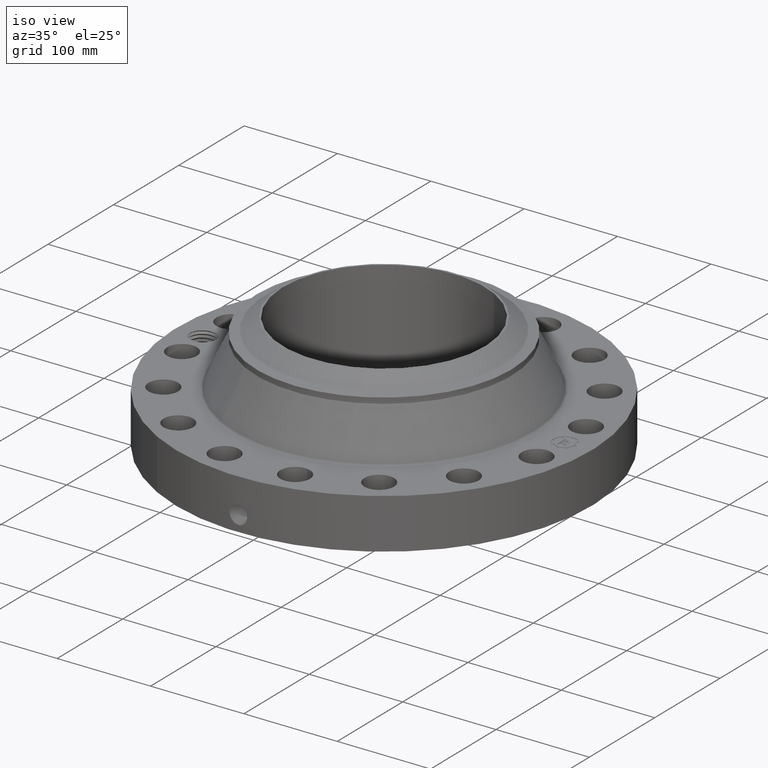
[diagram: clean part render]
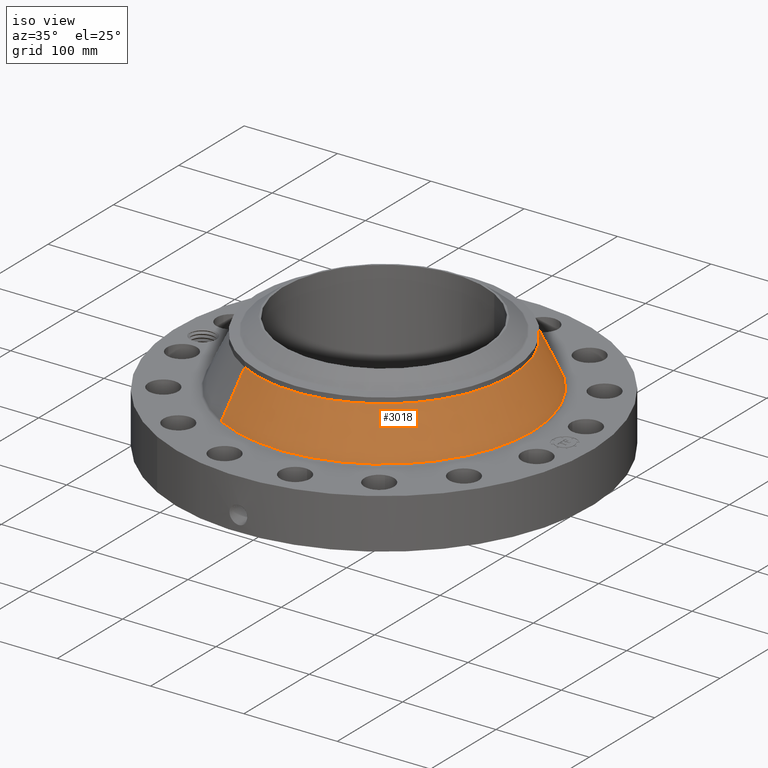
[diagram: same view with one face highlighted and labeled with its STEP entity id]
A machine part, iso view. The second image highlights one B-rep face of the part: STEP entity #3018.
In plain terms, the highlighted conical surface has half-angle 25.689 deg.
Its self-contained STEP definition (entity closure, byte-faithful):
#2331=AXIS2_PLACEMENT_3D('Circle Axis2P3D',#2329,#2330,$) ;
#2991=AXIS2_PLACEMENT_3D('Cone Axis2P3D',#2988,#2989,#2990) ;
#3002=AXIS2_PLACEMENT_3D('Circle Axis2P3D',#3000,#3001,$) ;
#2326=CARTESIAN_POINT('Vertex',(3.00949732195,5.50884789636,2.43798173757)) ;
#2329=CARTESIAN_POINT('Axis2P3D Location',(0.,0.,2.43798173757)) ;
#2333=CARTESIAN_POINT('Vertex',(-3.00949732195,-5.50884789636,2.43798173757)) ;
#2988=CARTESIAN_POINT('Axis2P3D Location',(0.,0.,4.31374450254)) ;
#2993=CARTESIAN_POINT('Line Origine',(2.79320479598,5.11292708327,3.37586312006)) ;
#2997=CARTESIAN_POINT('Vertex',(2.57691227001,4.71700627018,4.31374450254)) ;
#3000=CARTESIAN_POINT('Axis2P3D Location',(0.,0.,4.31374450254)) ;
#3004=CARTESIAN_POINT('Vertex',(-2.57691227001,-4.71700627018,4.31374450254)) ;
#3007=CARTESIAN_POINT('Line Origine',(-2.79320479598,-5.11292708327,3.37586312006)) ;
#2330=DIRECTION('Axis2P3D Direction',(0.,0.,-0.0393700787402)) ;
#2989=DIRECTION('Axis2P3D Direction',(0.,0.,-0.0393700787402)) ;
#2990=DIRECTION('Axis2P3D XDirection',(-0.0188750212049,-0.0345504945626,0.)) ;
#2994=DIRECTION('Vector Direction',(0.00818204838788,0.0149771391125,-0.0354787610859)) ;
#3001=DIRECTION('Axis2P3D Direction',(0.,0.,-0.0393700787402)) ;
#3008=DIRECTION('Vector Direction',(-0.00818204838788,-0.0149771391125,-0.0354787610859)) ;
#2995=VECTOR('Line Direction',#2994,0.0393700787402) ;
#3009=VECTOR('Line Direction',#3008,0.0393700787402) ;
#3013=ORIENTED_EDGE('',*,*,#2335,.F.) ;
#3014=ORIENTED_EDGE('',*,*,#2999,.T.) ;
#3015=ORIENTED_EDGE('',*,*,#3006,.T.) ;
#3016=ORIENTED_EDGE('',*,*,#3011,.F.) ;
#3018=ADVANCED_FACE('PartBody',(#3017),#2992,.T.) ;
#2332=CIRCLE('generated circle',#2331,6.27729872445) ;
#3003=CIRCLE('generated circle',#3002,5.37500000002) ;
#2992=CONICAL_SURFACE('Cone',#2991,5.37500000002,0.448357007997) ;
#2335=EDGE_CURVE('',#2327,#2334,#2332,.T.) ;
#2999=EDGE_CURVE('',#2327,#2998,#2996,.F.) ;
#3006=EDGE_CURVE('',#2998,#3005,#3003,.T.) ;
#3011=EDGE_CURVE('',#2334,#3005,#3010,.F.) ;
#3012=EDGE_LOOP('',(#3013,#3014,#3015,#3016)) ;
#3017=FACE_OUTER_BOUND('',#3012,.T.) ;
#2996=LINE('Line',#2993,#2995) ;
#3010=LINE('Line',#3007,#3009) ;
#2327=VERTEX_POINT('',#2326) ;
#2334=VERTEX_POINT('',#2333) ;
#2998=VERTEX_POINT('',#2997) ;
#3005=VERTEX_POINT('',#3004) ;